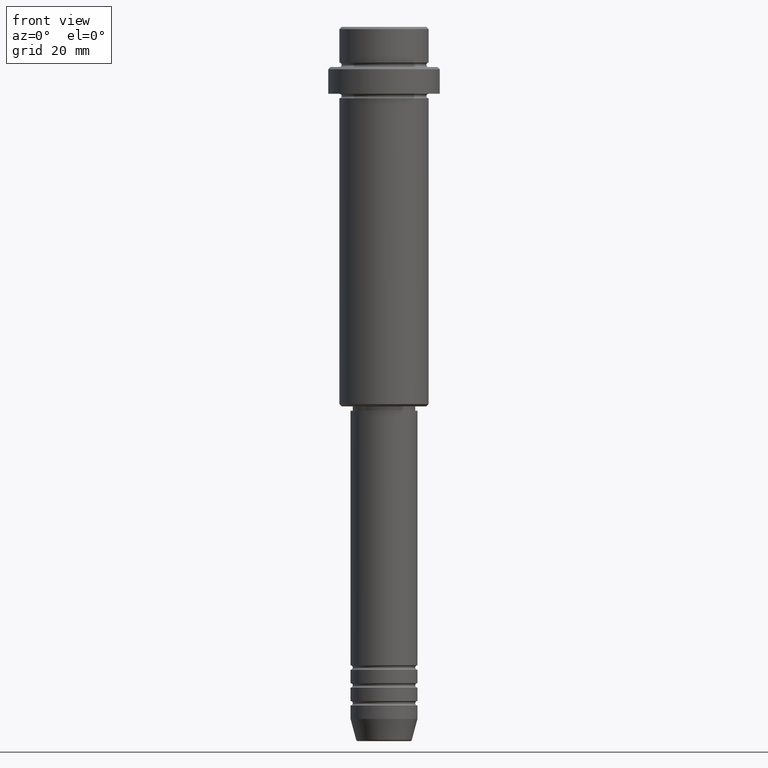
[diagram: clean part render]
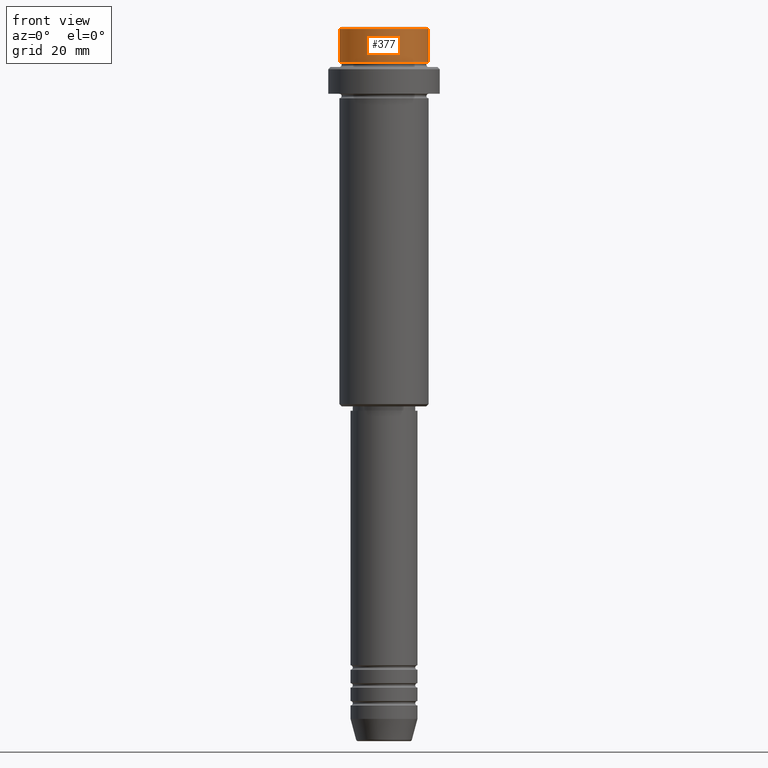
[diagram: same view with one face highlighted and labeled with its STEP entity id]
A machine part, front view. The second image highlights one B-rep face of the part: STEP entity #377.
In plain terms, the highlighted cylindrical surface (partial cylindrical patch) has radius 10 mm, axis along (-0, -0, 1).
Its self-contained STEP definition (entity closure, byte-faithful):
#120 = ORIENTED_EDGE ( 'NONE', *, *, #720, .F. ) ;
#169 = VECTOR ( 'NONE', #577, 1000.000000000000000 ) ;
#205 = VERTEX_POINT ( 'NONE', #1331 ) ;
#206 = CARTESIAN_POINT ( 'NONE',  ( 9.999999999999998224, 0.000000000000000000, -7.999999999999998224 ) ) ;
#241 = DIRECTION ( 'NONE',  ( -0.000000000000000000, -0.000000000000000000, 1.000000000000000000 ) ) ;
#246 = CIRCLE ( 'NONE', #588, 9.999999999999998224 ) ;
#247 = EDGE_CURVE ( 'NONE', #320, #1092, #580, .T. ) ;
#309 = CARTESIAN_POINT ( 'NONE',  ( 0.000000000000000000, 0.000000000000000000, -0.4999999999999970024 ) ) ;
#319 = DIRECTION ( 'NONE',  ( 1.000000000000000000, 0.000000000000000000, 0.000000000000000000 ) ) ;
#320 = VERTEX_POINT ( 'NONE', #1103 ) ;
#377 = ADVANCED_FACE ( 'NONE', ( #1083 ), #541, .T. ) ;
#432 = CARTESIAN_POINT ( 'NONE',  ( 0.000000000000000000, 0.000000000000000000, -7.999999999999998224 ) ) ;
#440 = LINE ( 'NONE', #463, #169 ) ;
#463 = CARTESIAN_POINT ( 'NONE',  ( -9.999999999999998224, 1.224646799147353059E-15, 0.000000000000000000 ) ) ;
#479 = VERTEX_POINT ( 'NONE', #206 ) ;
#541 = CYLINDRICAL_SURFACE ( 'NONE', #838, 9.999999999999998224 ) ;
#550 = DIRECTION ( 'NONE',  ( 1.000000000000000000, 0.000000000000000000, 0.000000000000000000 ) ) ;
#577 = DIRECTION ( 'NONE',  ( -0.000000000000000000, -0.000000000000000000, 1.000000000000000000 ) ) ;
#580 = CIRCLE ( 'NONE', #1384, 9.999999999999998224 ) ;
#588 = AXIS2_PLACEMENT_3D ( 'NONE', #432, #1312, #319 ) ;
#626 = CARTESIAN_POINT ( 'NONE',  ( 9.999999999999998224, 0.000000000000000000, 0.000000000000000000 ) ) ;
#636 = DIRECTION ( 'NONE',  ( 0.000000000000000000, 0.000000000000000000, -1.000000000000000000 ) ) ;
#651 = VECTOR ( 'NONE', #1416, 1000.000000000000000 ) ;
#720 = EDGE_CURVE ( 'NONE', #205, #1092, #440, .T. ) ;
#756 = ORIENTED_EDGE ( 'NONE', *, *, #247, .T. ) ;
#785 = CARTESIAN_POINT ( 'NONE',  ( 0.000000000000000000, 0.000000000000000000, 0.000000000000000000 ) ) ;
#838 = AXIS2_PLACEMENT_3D ( 'NONE', #785, #241, #550 ) ;
#887 = EDGE_LOOP ( 'NONE', ( #120, #1371, #1368, #756 ) ) ;
#956 = CARTESIAN_POINT ( 'NONE',  ( -9.999999999999998224, 1.224646799147353059E-15, -0.4999999999999970024 ) ) ;
#978 = LINE ( 'NONE', #626, #651 ) ;
#993 = EDGE_CURVE ( 'NONE', #479, #320, #978, .T. ) ;
#1083 = FACE_OUTER_BOUND ( 'NONE', #887, .T. ) ;
#1092 = VERTEX_POINT ( 'NONE', #956 ) ;
#1103 = CARTESIAN_POINT ( 'NONE',  ( 9.999999999999998224, 0.000000000000000000, -0.4999999999999970024 ) ) ;
#1196 = DIRECTION ( 'NONE',  ( 1.000000000000000000, 0.000000000000000000, 0.000000000000000000 ) ) ;
#1197 = EDGE_CURVE ( 'NONE', #205, #479, #246, .T. ) ;
#1312 = DIRECTION ( 'NONE',  ( -0.000000000000000000, -0.000000000000000000, 1.000000000000000000 ) ) ;
#1331 = CARTESIAN_POINT ( 'NONE',  ( -9.999999999999998224, 1.224646799147353059E-15, -7.999999999999998224 ) ) ;
#1368 = ORIENTED_EDGE ( 'NONE', *, *, #993, .T. ) ;
#1371 = ORIENTED_EDGE ( 'NONE', *, *, #1197, .T. ) ;
#1384 = AXIS2_PLACEMENT_3D ( 'NONE', #309, #636, #1196 ) ;
#1416 = DIRECTION ( 'NONE',  ( -0.000000000000000000, -0.000000000000000000, 1.000000000000000000 ) ) ;